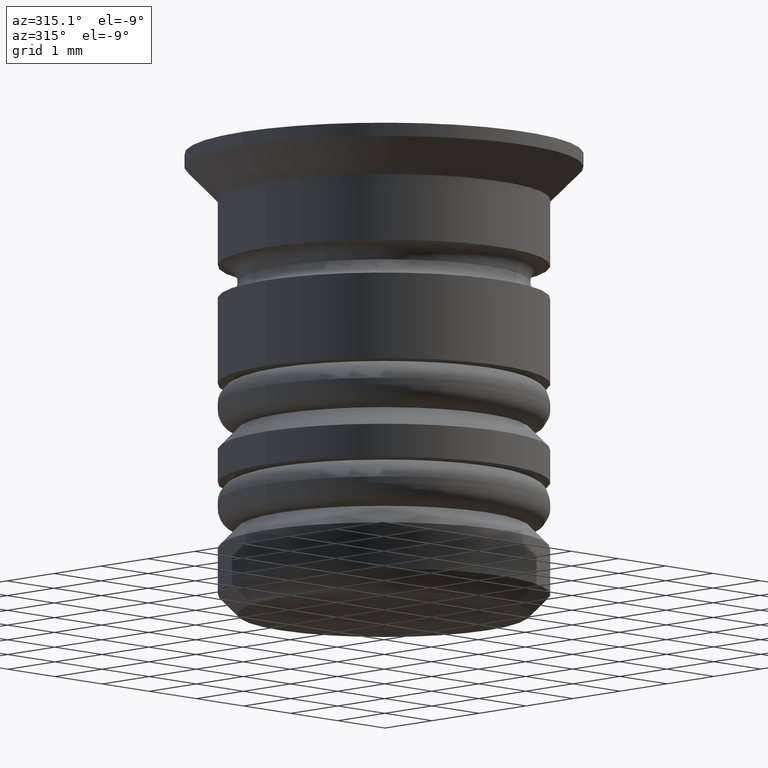
[diagram: clean part render]
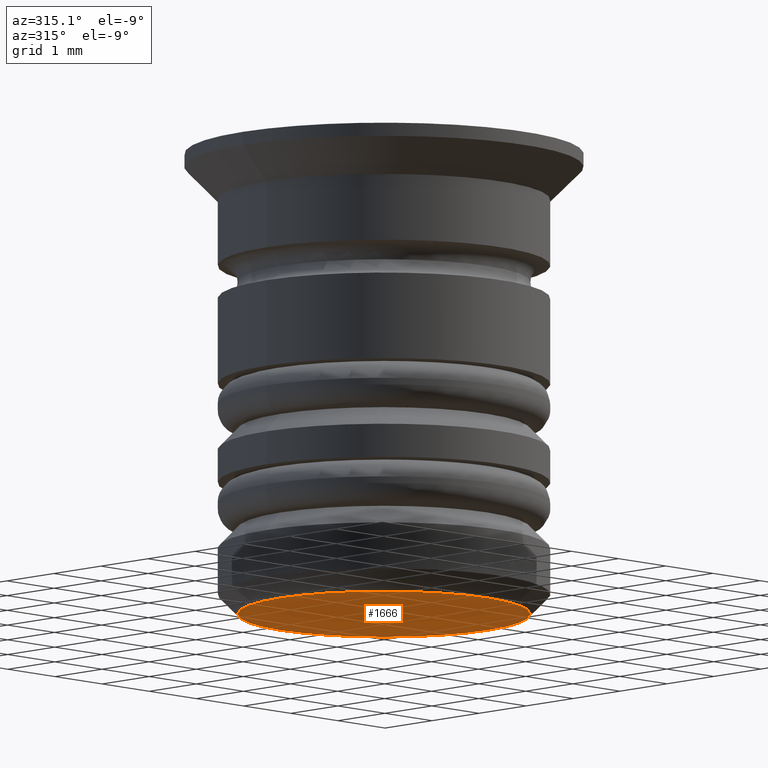
[diagram: same view with one face highlighted and labeled with its STEP entity id]
A machine part, auxiliary view. The second image highlights one B-rep face of the part: STEP entity #1666.
In plain terms, the highlighted planar face has unit normal (0, 0, -1).
Its self-contained STEP definition (entity closure, byte-faithful):
#92 = PLANE ( 'NONE',  #724 ) ;
#160 = AXIS2_PLACEMENT_3D ( 'NONE', #1342, #905, #1656 ) ;
#181 = ORIENTED_EDGE ( 'NONE', *, *, #658, .T. ) ;
#241 = CARTESIAN_POINT ( 'NONE',  ( 0.000000000000000000, 2.500000000000001776, -7.000000000000000888 ) ) ;
#258 = DIRECTION ( 'NONE',  ( -1.000000000000000000, 0.000000000000000000, -0.000000000000000000 ) ) ;
#455 = CIRCLE ( 'NONE', #160, 2.200000000000000622 ) ;
#506 = FACE_OUTER_BOUND ( 'NONE', #1394, .T. ) ;
#626 = CARTESIAN_POINT ( 'NONE',  ( -2.200000000000000622, 2.877919977996281306E-16, -7.000000000000000888 ) ) ;
#645 = AXIS2_PLACEMENT_3D ( 'NONE', #1828, #989, #1108 ) ;
#658 = EDGE_CURVE ( 'NONE', #1286, #998, #455, .T. ) ;
#724 = AXIS2_PLACEMENT_3D ( 'NONE', #241, #1073, #258 ) ;
#905 = DIRECTION ( 'NONE',  ( 0.000000000000000000, 0.000000000000000000, -1.000000000000000000 ) ) ;
#989 = DIRECTION ( 'NONE',  ( 0.000000000000000000, 0.000000000000000000, -1.000000000000000000 ) ) ;
#998 = VERTEX_POINT ( 'NONE', #626 ) ;
#1073 = DIRECTION ( 'NONE',  ( 0.000000000000000000, 0.000000000000000000, -1.000000000000000000 ) ) ;
#1108 = DIRECTION ( 'NONE',  ( -1.000000000000000000, 0.000000000000000000, 0.000000000000000000 ) ) ;
#1286 = VERTEX_POINT ( 'NONE', #1448 ) ;
#1342 = CARTESIAN_POINT ( 'NONE',  ( 0.000000000000000000, 0.000000000000000000, -7.000000000000000888 ) ) ;
#1394 = EDGE_LOOP ( 'NONE', ( #181, #1574 ) ) ;
#1415 = CIRCLE ( 'NONE', #645, 2.200000000000000622 ) ;
#1448 = CARTESIAN_POINT ( 'NONE',  ( 2.200000000000000622, 0.000000000000000000, -7.000000000000000888 ) ) ;
#1574 = ORIENTED_EDGE ( 'NONE', *, *, #1819, .T. ) ;
#1656 = DIRECTION ( 'NONE',  ( -1.000000000000000000, 0.000000000000000000, 0.000000000000000000 ) ) ;
#1666 = ADVANCED_FACE ( 'NONE', ( #506 ), #92, .T. ) ;
#1819 = EDGE_CURVE ( 'NONE', #998, #1286, #1415, .T. ) ;
#1828 = CARTESIAN_POINT ( 'NONE',  ( 0.000000000000000000, 0.000000000000000000, -7.000000000000000888 ) ) ;